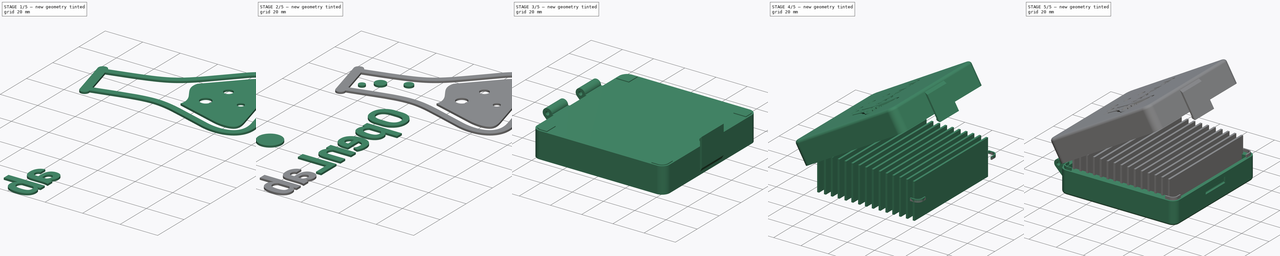
[diagram: build sequence overview — one tinted view per stage of 5, left to right]
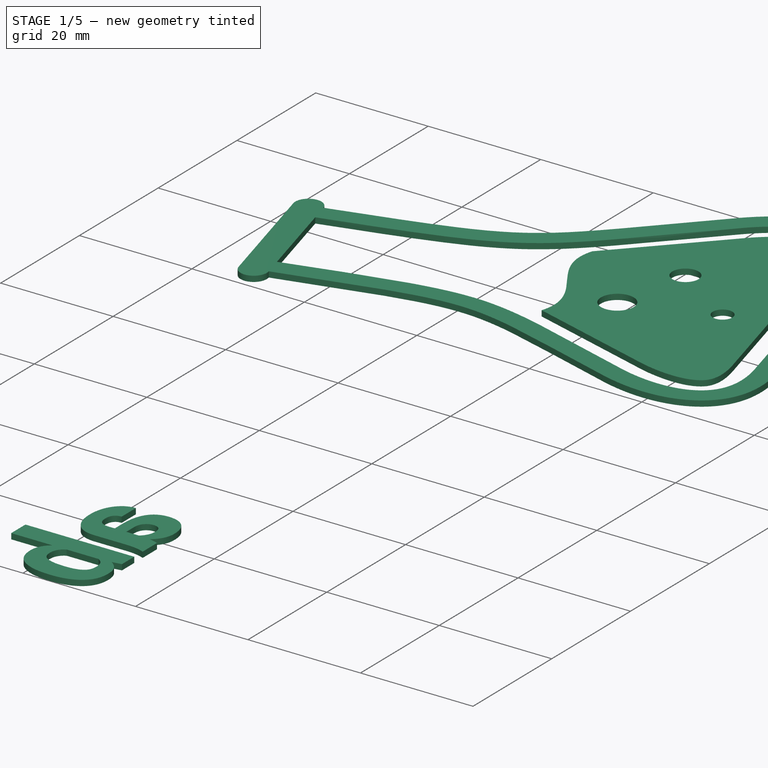
[diagram: stage 1 of 5 — iso view after this stage's code; geometry added in this stage tinted green]
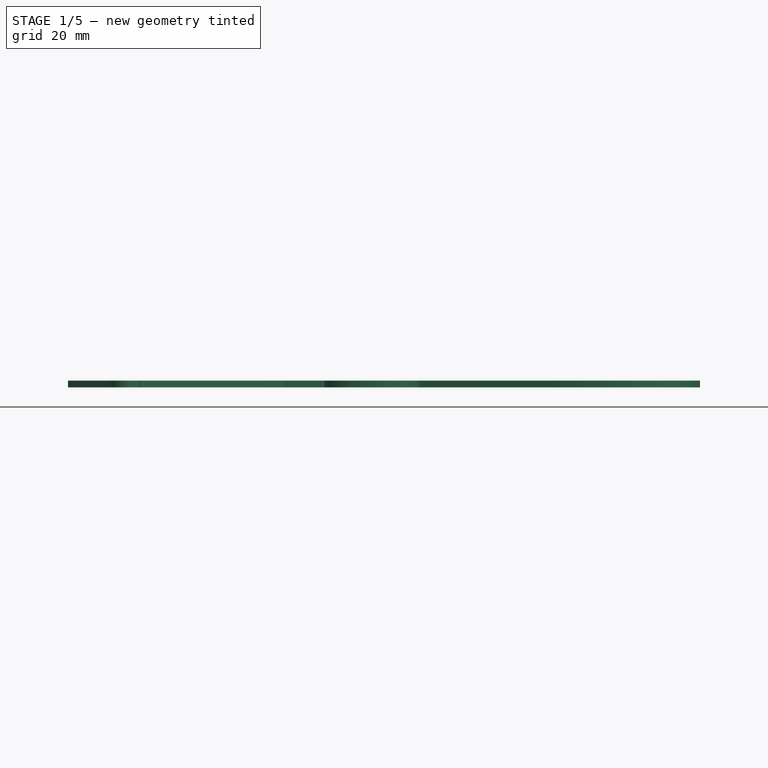
[diagram: stage 1 of 5 — front view after this stage's code; geometry added in this stage tinted green]
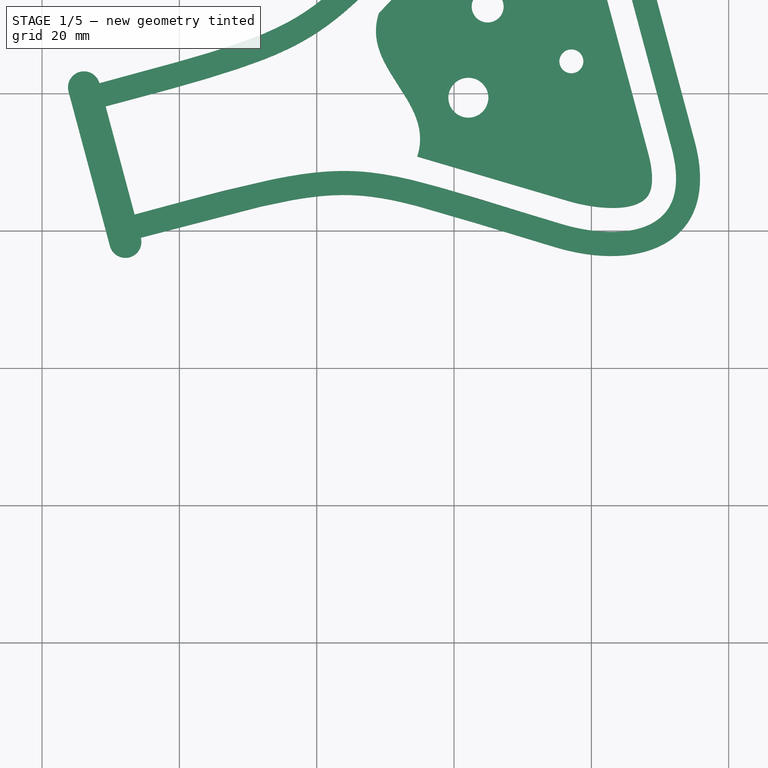
[diagram: stage 1 of 5 — top view after this stage's code; geometry added in this stage tinted green]
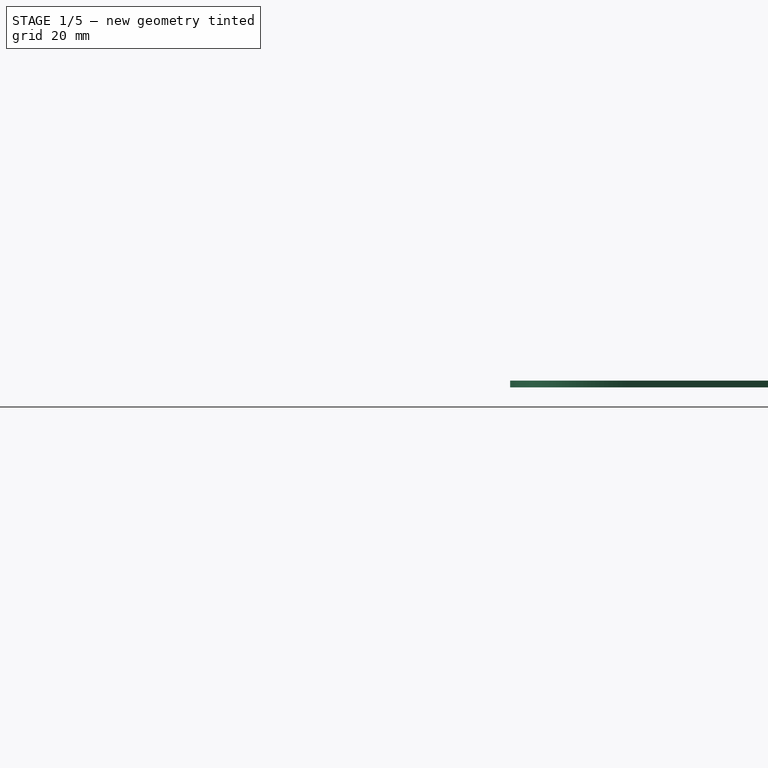
[diagram: stage 1 of 5 — right view after this stage's code; geometry added in this stage tinted green]
FCSTD DOCUMENT  (FreeCAD 0.16R6603 (Git))
Label: sample-carrier
License: All rights reserved
LicenseURL: http://en.wikipedia.org/wiki/All_rights_reserved
objects: Part::Feature×26, Part::Extrusion×26, Part::FeaturePython×14, Part::Cut×11, Part::MultiFuse×9, Sketcher::SketchObject×6, PartDesign::Pad×6, Part::Mirroring×4, Part::Box×3, App::DocumentObjectGroup×3, Spreadsheet::Sheet×1, Part::Thickness×1, Part::Fillet×1, Part::Compound×1
note: 114 computed .brp shape members not serialized (recipe doc carries the construction recipe); baked Part::Feature solids carry a one-line shape summary decoded from their .brp

FEATURE [Part::Extrusion] Extrude005
  Base = -> path4197
  Dir = (0,0,1)
  Solid = true
FEATURE [Part::Extrusion] Extrude006
  Base = -> path4197001
  Dir = (0,0,1)
  Solid = true
FEATURE [Part::Extrusion] Extrude007
  Base = -> path4197002
  Dir = (0,0,1)
  Solid = true
FEATURE [Part::Extrusion] Extrude008
  Base = -> path4197003
  Dir = (0,0,1)
  Solid = true
FEATURE [Part::Extrusion] Extrude011
  Base = -> path4211
  Dir = (0,0,1)
  Solid = true
FEATURE [Part::Extrusion] Extrude012
  Base = -> path4211001
  Dir = (0,0,1)
  Solid = true
FEATURE [Part::Extrusion] Extrude022
  Base = -> path3456
  Dir = (0,0,1)
  Solid = true
FEATURE [Part::Extrusion] Extrude023
  Base = -> path3456001
  Dir = (0,0,1)
  Solid = true
FEATURE [Part::Extrusion] Extrude024
  Base = -> path3458
  Dir = (0,0,1)
  Solid = true
FEATURE [Part::Extrusion] Extrude025
  Base = -> path3458001
  Dir = (0,0,1)
  Solid = true
FEATURE [Part::Cut] Cut006
  Base = -> Extrude022
  Placement = pos=(-65,87,0) rot=(0.707107,-0.707107,0;3.14159rad)
  Tool = -> Extrude023
FEATURE [Part::Cut] Cut007
  Base = -> Extrude024
  Placement = pos=(-65,87,0) rot=(0.707107,-0.707107,0;3.14159rad)
  Tool = -> Extrude025
FEATURE [Part::Cut] Cut008
  Base = -> Extrude011
  Placement = pos=(-65,87,0) rot=(0.707107,-0.707107,0;3.14159rad)
  Tool = -> Extrude012
FEATURE [Part::MultiFuse] Fusion008
  Shapes = -> [Extrude005,Extrude006,Extrude007]
FEATURE [Part::Cut] Cut009
  Base = -> Extrude008
  Placement = pos=(-65,87,0) rot=(0.707107,-0.707107,0;3.14159rad)
  Tool = -> Fusion008
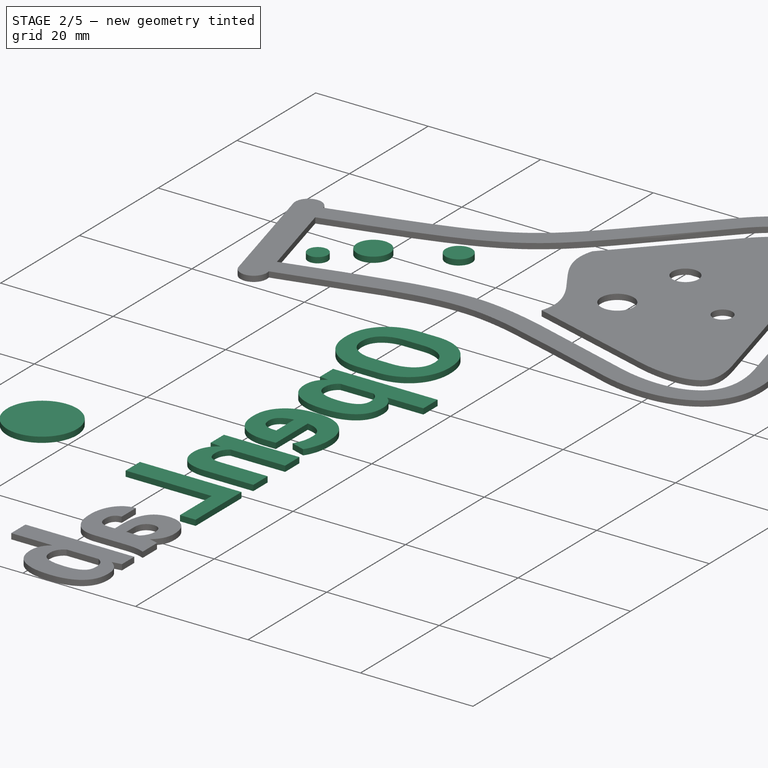
[diagram: stage 2 of 5 — iso view after this stage's code; geometry added in this stage tinted green]
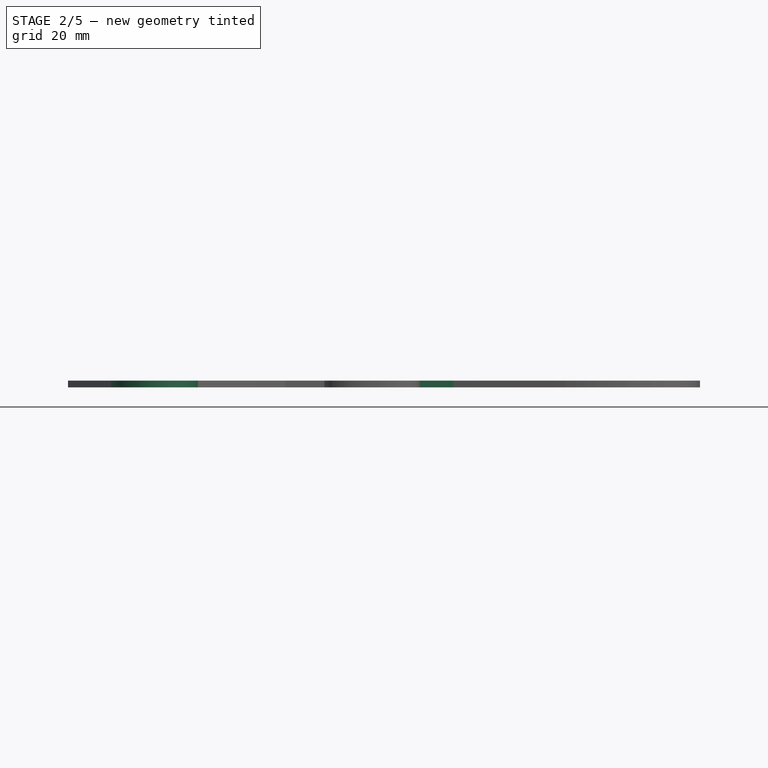
[diagram: stage 2 of 5 — front view after this stage's code; geometry added in this stage tinted green]
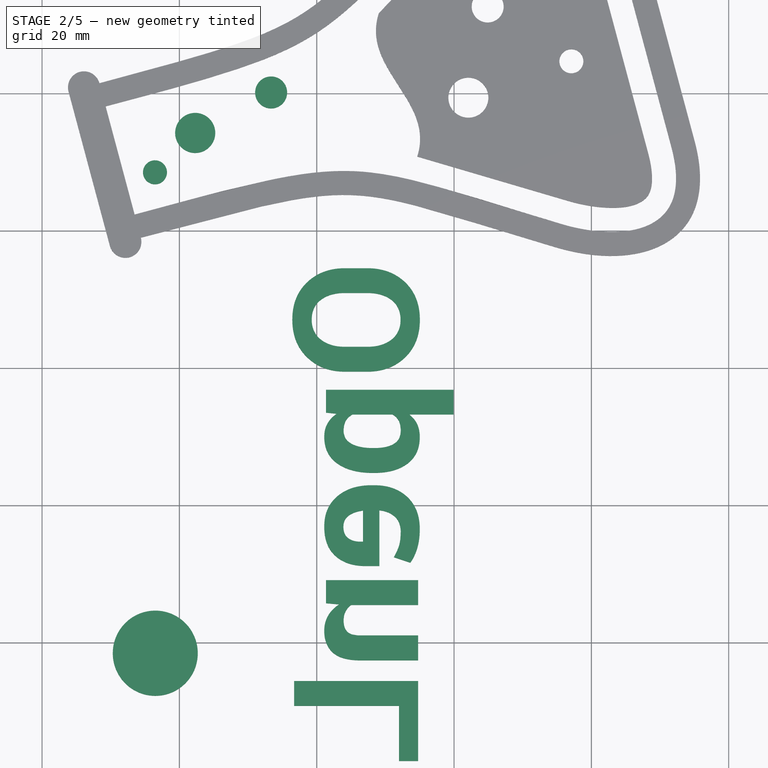
[diagram: stage 2 of 5 — top view after this stage's code; geometry added in this stage tinted green]
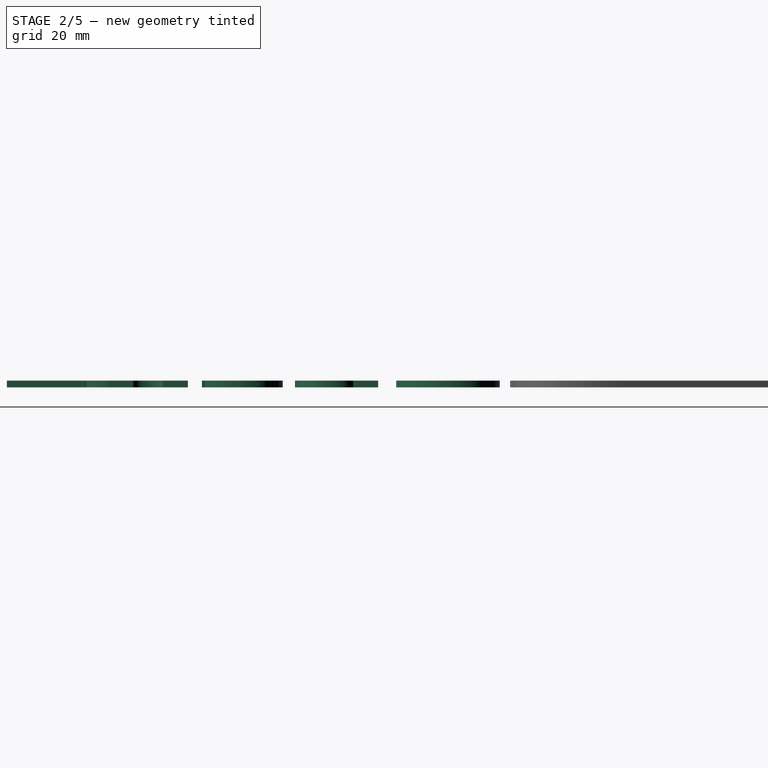
[diagram: stage 2 of 5 — right view after this stage's code; geometry added in this stage tinted green]
FEATURE [Part::Extrusion] Extrude004
  Base = -> path4172
  Dir = (0,0,1)
  Placement = pos=(-65,87,0) rot=(0.707107,-0.707107,0;3.14159rad)
  Solid = true
FEATURE [Part::Extrusion] Extrude009
  Base = -> circle4203
  Dir = (0,0,1)
  Placement = pos=(-65,87,0) rot=(0.707107,-0.707107,0;3.14159rad)
  Solid = true
FEATURE [Part::Extrusion] Extrude010
  Base = -> circle4209
  Dir = (0,0,1)
  Placement = pos=(-65,87,0) rot=(0.707107,-0.707107,0;3.14159rad)
  Solid = true
FEATURE [Part::Extrusion] Extrude013
  Base = -> circle4203_5
  Dir = (0,0,1)
  Placement = pos=(-65,87,0) rot=(0.707107,-0.707107,0;3.14159rad)
  Solid = true
FEATURE [Part::Extrusion] Extrude014
  Base = -> path3446
  Dir = (0,0,1)
  Solid = true
FEATURE [Part::Extrusion] Extrude015
  Base = -> path3446001
  Dir = (0,0,1)
  Solid = true
FEATURE [Part::Extrusion] Extrude016
  Base = -> path3448
  Dir = (0,0,1)
  Solid = true
FEATURE [Part::Extrusion] Extrude017
  Base = -> path3448001
  Dir = (0,0,1)
  Solid = true
FEATURE [Part::Extrusion] Extrude018
  Base = -> path3450
  Dir = (0,0,1)
  Solid = true
FEATURE [Part::Extrusion] Extrude019
  Base = -> path3450001
  Dir = (0,0,1)
  Solid = true
FEATURE [Part::Extrusion] Extrude020
  Base = -> path3452
  Dir = (0,0,1)
  Placement = pos=(-65,87,0) rot=(0.707107,-0.707107,0;3.14159rad)
  Solid = true
FEATURE [Part::Extrusion] Extrude021
  Base = -> path3454
  Dir = (0,0,1)
  Placement = pos=(-65,87,0) rot=(0.707107,-0.707107,0;3.14159rad)
  Solid = true
FEATURE [Part::Cut] Cut003
  Base = -> Extrude014
  Placement = pos=(-65,87,0) rot=(0.707107,-0.707107,0;3.14159rad)
  Tool = -> Extrude015
FEATURE [Part::Cut] Cut004
  Base = -> Extrude016
  Placement = pos=(-65,87,0) rot=(0.707107,-0.707107,0;3.14159rad)
  Tool = -> Extrude017
FEATURE [Part::Cut] Cut005
  Base = -> Extrude018
  Placement = pos=(-65,87,0) rot=(0.707107,-0.707107,0;3.14159rad)
  Tool = -> Extrude019
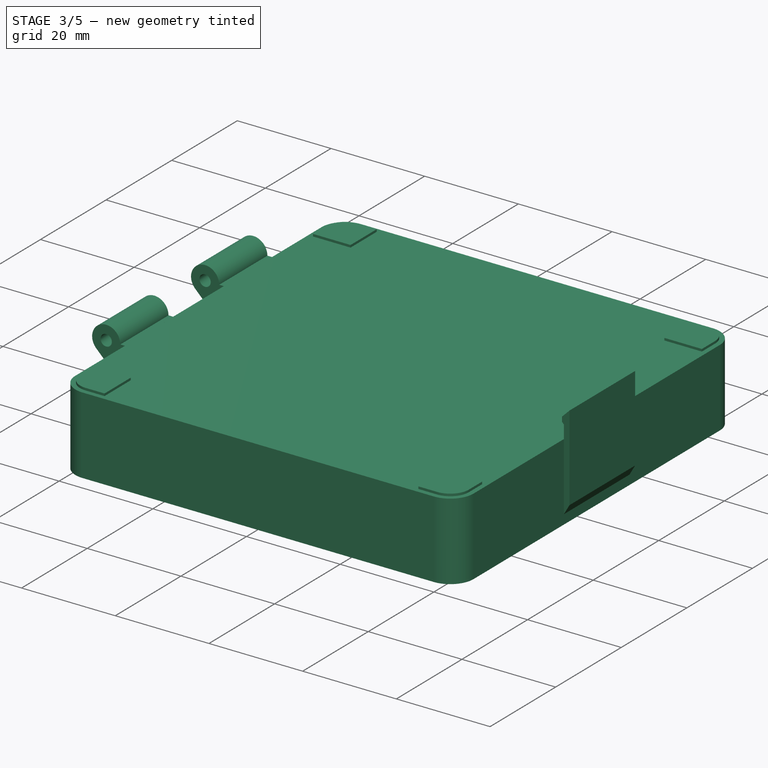
[diagram: stage 3 of 5 — iso view after this stage's code; geometry added in this stage tinted green]
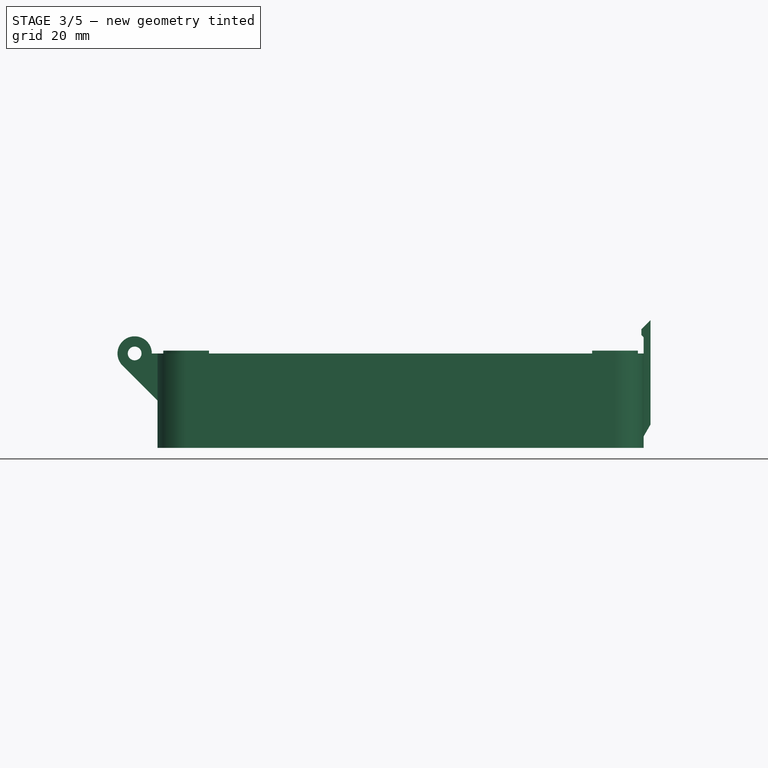
[diagram: stage 3 of 5 — front view after this stage's code; geometry added in this stage tinted green]
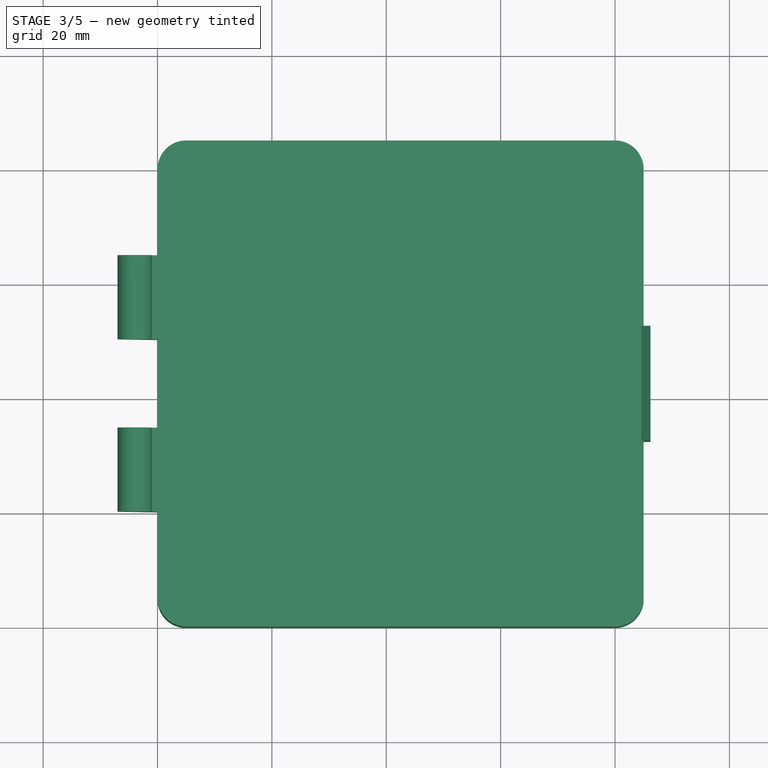
[diagram: stage 3 of 5 — top view after this stage's code; geometry added in this stage tinted green]
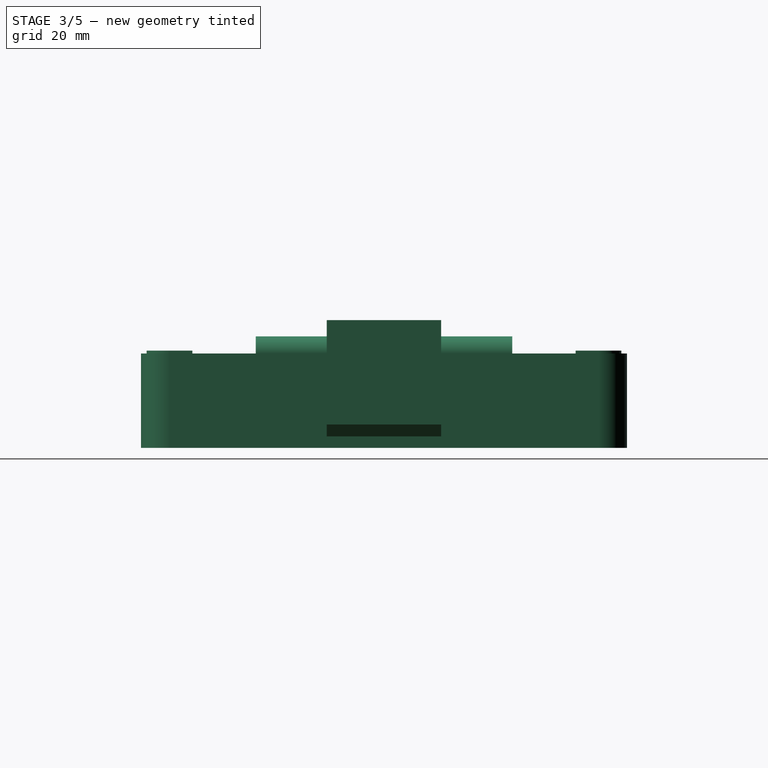
[diagram: stage 3 of 5 — right view after this stage's code; geometry added in this stage tinted green]
FEATURE [Spreadsheet::Sheet] Spreadsheet
  cells = B2=Number of samples; C2(samples)=15
FEATURE [Sketcher::SketchObject] Sketch  label="BodySketch"
  expr: Constraints[12] = Spreadsheet.samples * 5
  sketch-geometry (8):
    g0: LineSegment StartX=5 StartY=85 StartZ=0 EndX=80 EndY=85 EndZ=0
    g1: LineSegment StartX=85 StartY=5 StartZ=0 EndX=85 EndY=80 EndZ=0
    g2: LineSegment StartX=4.99999 StartY=0 StartZ=0 EndX=80 EndY=0 EndZ=0
    g3: LineSegment StartX=0 StartY=5 StartZ=0 EndX=0 EndY=80 EndZ=0
    g4: ArcOfCircle CenterX=5 CenterY=80 CenterZ=0 NormalX=0 NormalY=0 NormalZ=1 Radius=5 StartAngle=1.5708 EndAngle=3.14159
    g5: ArcOfCircle CenterX=4.99997 CenterY=4.99997 CenterZ=0 NormalX=0 NormalY=0 NormalZ=1 Radius=4.99997 StartAngle=3.14159 EndAngle=4.71239
    g6: ArcOfCircle CenterX=80 CenterY=5 CenterZ=0 NormalX=0 NormalY=0 NormalZ=1 Radius=5 StartAngle=4.71239 EndAngle=6.28319
    g7: ArcOfCircle CenterX=80 CenterY=80 CenterZ=0 NormalX=0 NormalY=0 NormalZ=1 Radius=5 StartAngle=3.24556e-07 EndAngle=1.5708
  constraints (28):
    c: Horizontal(g0)
    c: Horizontal(g2)
    c: Vertical(g1)
    c: Vertical(g3)
    c: Coincident(g4,g0)
    c: Coincident(g4,g3)
    c: Tangent(g0,g4)
    c: Tangent(g4,g3)
    c: Equal(g0,g2)
    c: Equal(g1,g3)
    c: PointOnObject(g3,g-2)
    c: PointOnObject(g2,g-1)
    c: DistanceX(g2) = 75
    c: DistanceY(g1) = 75
    c: Coincident(g5,g3)
    c: Coincident(g5,g2)
    c: Coincident(g6,g1)
    c: Coincident(g6,g2)
    c: Coincident(g7,g0)
    c: Coincident(g7,g1)
    c: Tangent(g1,g7)
    c: Tangent(g0,g7)
    c: Tangent(g5,g2)
    c: Tangent(g6,g2)
    c: Tangent(g1,g6)
    c: Equal(g6,g7)
    c: Equal(g7,g4)
    c: Radius(g4) = 5
FEATURE [PartDesign::Pad] Pad  label="BodyPad"
  Length = 16.5
  Length2 = 100
  Sketch = -> Sketch
  Type = 0
FEATURE [Sketcher::SketchObject] Sketch002  label="hingeSketch"
  Placement = pos=(0,0,0) rot=(1,0,0;1.5708rad)
  sketch-geometry (5):
    g0: LineSegment StartX=0 StartY=0 StartZ=0 EndX=-6.12131 EndY=6.12131 EndZ=0
    g1: LineSegment StartX=0 StartY=0 StartZ=0 EndX=0 EndY=8.24264 EndZ=0
    g2: Circle CenterX=-4 CenterY=8.24264 CenterZ=0 NormalX=0 NormalY=0 NormalZ=1 Radius=1.2
    g3: ArcOfCircle CenterX=-4 CenterY=8.24264 CenterZ=0 NormalX=0 NormalY=0 NormalZ=1 Radius=3 StartAngle=0 EndAngle=3.927
    g4: LineSegment StartX=-1 StartY=8.24264 StartZ=0 EndX=0 EndY=8.24264 EndZ=0
  constraints (14):
    c: Coincident(g0,g-1)
    c: Angle(g-1,g0) = 2.35619
    c: Coincident(g1,g-1)
    c: Vertical(g1)
    c: Radius(g2) = 1.2
    c: Coincident(g3,g2)
    c: Coincident(g3,g0)
    c: Coincident(g4,g3)
    c: Coincident(g4,g1)
    c: Horizontal(g4)
    c: DistanceX(g4) = 1
    c: Radius(g3) = 3
    c: DistanceY(g2,g3) = 0
    c: Tangent(g0,g3)
FEATURE [PartDesign::Pad] Pad001  label="HingeMaster"
  Length = 14.7
  Length2 = 100
  Midplane = true
  Placement = pos=(0,0,0) rot=(1,0,0;1.5708rad)
  Sketch = -> Sketch002
  Type = 0
FEATURE [Sketcher::SketchObject] Sketch004  label="TopCornerSketch"
  Placement = pos=(5,5,17) rot=(0,0,1;3.14159rad)
  sketch-geometry (5):
    g0: ArcOfCircle CenterX=0 CenterY=0 CenterZ=0 NormalX=0 NormalY=0 NormalZ=1 Radius=4 StartAngle=0 EndAngle=1.5708
    g1: LineSegment StartX=4 StartY=-4 StartZ=0 EndX=4 EndY=0 EndZ=0
    g2: LineSegment StartX=0 StartY=4 StartZ=0 EndX=-4 EndY=4 EndZ=0
    g3: LineSegment StartX=-4 StartY=4 StartZ=0 EndX=-4 EndY=-4 EndZ=0
    g4: LineSegment StartX=4 StartY=-4 StartZ=0 EndX=-4 EndY=-4 EndZ=0
  constraints (14):
    c: Radius(g0) = 4
    c: Coincident(g0,g-1)
    c: Vertical(g1)
    c: Coincident(g1,g0)
    c: PointOnObject(g0,g-1)
    c: Tangent(g0,g2) = -1.5708
    c: Coincident(g2,g3)
    c: Vertical(g3)
    c: Horizontal(g2)
    c: DistanceX(g2) = -4
    c: Coincident(g4,g1)
    c: Horizontal(g4)
    c: Coincident(g3,g4)
    c: DistanceY(g1) = 4
FEATURE [PartDesign::Pad] Pad003  label="TopCornerPad"
  Length = 3
  Length2 = 100
  Placement = pos=(5,5,17) rot=(0,0,1;3.14159rad)
  Reversed = true
  Sketch = -> Sketch004
  Type = 0
FEATURE [Part::Mirroring] Part__Mirroring002  label="TopCornerPad (Mirror #3)"
  Base = (0,42.5,0)
  Normal = (0,1,0)
  Source = -> Pad003
FEATURE [Part::MultiFuse] Fusion004  label="TopCornersA"
  Shapes = -> [Pad003,Part__Mirroring002]
FEATURE [Part::Mirroring] Part__Mirroring003  label="TopCornersB"
  Base = (42.5,0,0)
  Normal = (1,0,0)
  Source = -> Fusion004
  expr: Base.x = (Spreadsheet.samples * 5 + 10) / 2
FEATURE [Part::MultiFuse] Fusion005  label="TopCorners"
  Shapes = -> [Fusion004,Part__Mirroring003]
FEATURE [Sketcher::SketchObject] Sketch005  label="FixSketch"
  Placement = pos=(86.2,42.5,0) rot=(1,0,0;1.5708rad)
  expr: Placement.Base.x = Spreadsheet.samples * 5 + 10 + 1.2
  sketch-geometry (6):
    g0: LineSegment StartX=0 StartY=4.07846 StartZ=0 EndX=0 EndY=22.3229 EndZ=0
    g1: LineSegment StartX=0 StartY=4.07846 StartZ=0 EndX=-1.2 EndY=2 EndZ=0
    g2: LineSegment StartX=-1.2 StartY=2 StartZ=0 EndX=-1.2 EndY=19.3229 EndZ=0
    g3: LineSegment StartX=-1.6 StartY=19.7229 StartZ=0 EndX=-1.6 EndY=20.7229 EndZ=0
    g4: LineSegment StartX=-1.6 StartY=20.7229 StartZ=0 EndX=0 EndY=22.3229 EndZ=0
    g5: LineSegment StartX=-1.2 StartY=19.3229 StartZ=0 EndX=-1.6 EndY=19.7229 EndZ=0
  constraints (18):
    c: Vertical(g0)
    c: Coincident(g1,g2)
    c: Vertical(g2)
    c: DistanceX(g1) = -1.2
    c: DistanceY(g2,g0) = 3
    c: Coincident(g4,g3)
    c: Coincident(g4,g0)
    c: Vertical(g3)
    c: Angle(g3,g4) = 2.35619
    c: Coincident(g5,g2)
    c: Coincident(g5,g3)
    c: Angle(g5,g2) = 2.35619
    c: DistanceY(g2,g3) = 0.4
    c: PointOnObject(g0,g-2)
    c: Coincident(g1,g0)
    c: DistanceY(g-1,g1) = 2
    c: Angle(g1,g2) = 0.523599
    c: DistanceY(g2) = 17.3229
FEATURE [PartDesign::Pad] Pad004  label="FixPad"
  Length = 20
  Length2 = 100
  Midplane = true
  Placement = pos=(86.2,42.5,0) rot=(1,0,0;1.5708rad)
  Sketch = -> Sketch005
  Type = 0
FEATURE [Part::FeaturePython] Clone006  label="Clone of HingeMaster003"  # Draft clone (typed FeaturePython)
  Objects = -> [Pad001]
  Placement = pos=(5e-12,57.575,8.25736) rot=(1,0,0;1.5708rad)
  Scale = (1,1,1)
FEATURE [Part::FeaturePython] Clone007  label="Clone of HingeMaster004"  # Draft clone (typed FeaturePython)
  Objects = -> [Pad001]
  Placement = pos=(1.4e-11,27.425,8.25736) rot=(1,0,0;1.5708rad)
  Scale = (1,1,1)
FEATURE [Part::Feature] path4156
  shape: bbox 8.708 x 8.684 x 2e-07 mm, 0 faces, 0 solids (baked)
FEATURE [Part::Feature] path4160
  shape: bbox 12.41 x 12.38 x 2e-07 mm, 0 faces, 0 solids (baked)
FEATURE [Part::Feature] path4164
  shape: bbox 12.41 x 12.38 x 2e-07 mm, 0 faces, 0 solids (baked)
FEATURE [Part::Feature] path4168
  shape: bbox 12.41 x 12.38 x 2e-07 mm, 0 faces, 0 solids (baked)
FEATURE [Part::Feature] path4172
  shape: bbox 12.41 x 12.38 x 2e-07 mm, 0 faces, 0 solids (baked)
FEATURE [Part::Feature] path4197
  shape: bbox 6.135 x 6.135 x 2e-07 mm, 0 faces, 0 solids (baked)
FEATURE [Part::Feature] path4197001
  shape: bbox 3.68 x 3.68 x 2e-07 mm, 0 faces, 0 solids (baked)
FEATURE [Part::Feature] path4197002
  shape: bbox 4.906 x 4.908 x 2e-07 mm, 0 faces, 0 solids (baked)
FEATURE [Part::Feature] path4197003
  shape: bbox 50.87 x 41.54 x 2e-07 mm, 0 faces, 0 solids (baked)
FEATURE [Part::Feature] circle4203
  Placement = pos=(351.916,-321.104,0) rot=(0,0,1;0rad)
  shape: bbox 4.12 x 4.12 x 2e-07 mm, 0 faces, 0 solids (baked)
FEATURE [Part::Feature] circle4209
  Placement = pos=(323.883,-400.239,0) rot=(0,0,1;0rad)
  shape: bbox 5.493 x 5.493 x 2e-07 mm, 0 faces, 0 solids (baked)
FEATURE [Part::Feature] path4211
  shape: bbox 68 x 94.14 x 2e-07 mm, 0 faces, 0 solids (baked)
FEATURE [Part::Feature] path4211001
  shape: bbox 58.05 x 83.4 x 2e-07 mm, 0 faces, 0 solids (baked)
FEATURE [Part::Feature] circle4203_5
  Placement = pos=(335.456,-350.315,0) rot=(0,0,1;0rad)
  shape: bbox 6.885 x 6.885 x 2e-07 mm, 0 faces, 0 solids (baked)
FEATURE [Part::Feature] path3446
  shape: bbox 15.07 x 18.58 x 2e-07 mm, 0 faces, 0 solids (baked)
FEATURE [Part::Feature] path3446001
  shape: bbox 7.838 x 12.94 x 2e-07 mm, 0 faces, 0 solids (baked)
FEATURE [Part::Feature] path3448
  shape: bbox 12.1 x 18.83 x 2e-07 mm, 0 faces, 0 solids (baked)
FEATURE [Part::Feature] path3448001
  shape: bbox 4.874 x 8.322 x 2e-07 mm, 0 faces, 0 solids (baked)
FEATURE [Part::Feature] path3450
  shape: bbox 11.77 x 13.93 x 2e-07 mm, 0 faces, 0 solids (baked)
FEATURE [Part::Feature] path3450001
  shape: bbox 4.527 x 2.853 x 2e-07 mm, 0 faces, 0 solids (baked)
FEATURE [Part::Feature] path3452
  shape: bbox 11.7 x 13.67 x 2e-07 mm, 0 faces, 0 solids (baked)
FEATURE [Part::Feature] path3454
  shape: bbox 11.66 x 18.06 x 2e-07 mm, 0 faces, 0 solids (baked)
FEATURE [Part::Feature] path3456
  shape: bbox 12.03 x 13.92 x 2e-07 mm, 0 faces, 0 solids (baked)
FEATURE [Part::Feature] path3456001
  shape: bbox 4.192 x 3.46 x 2e-07 mm, 0 faces, 0 solids (baked)
FEATURE [Part::Feature] path3458
  shape: bbox 12.1 x 19.6 x 2e-07 mm, 0 faces, 0 solids (baked)
FEATURE [Part::Feature] path3458001
  shape: bbox 4.887 x 8.297 x 2e-07 mm, 0 faces, 0 solids (baked)
FEATURE [Part::Extrusion] Extrude
  Base = -> path4156
  Dir = (0,0,1)
  Placement = pos=(-65,87,0) rot=(0.707107,-0.707107,0;3.14159rad)
  Solid = true
FEATURE [Part::Extrusion] Extrude001
  Base = -> path4160
  Dir = (0,0,1)
  Placement = pos=(-65,87,0) rot=(0.707107,-0.707107,0;3.14159rad)
  Solid = true
FEATURE [Part::Extrusion] Extrude002
  Base = -> path4164
  Dir = (0,0,1)
  Placement = pos=(-65,87,0) rot=(0.707107,-0.707107,0;3.14159rad)
  Solid = true
FEATURE [Part::Extrusion] Extrude003
  Base = -> path4168
  Dir = (0,0,1)
  Placement = pos=(-65,87,0) rot=(0.707107,-0.707107,0;3.14159rad)
  Solid = true
FEATURE [Part::Compound] Compound  label="Logo"
  Links = -> [Cut003,Extrude,Extrude020,Extrude001,Extrude003,Extrude004,Extrude002,Extrude010,Cut004,Extrude009,Cut005,Extrude013,Cut008,Extrude021,Cut006,Cut007,Cut009]
FEATURE [Part::FeaturePython] Clone008  label="Clone of Logo"  # Draft clone (typed FeaturePython)
  Objects = -> [Compound]
  Placement = pos=(42.5,43.5,1) rot=(0,0,1;0rad)
  Scale = (0.4,0.4,1)
  expr: Scale.y = Spreadsheet.samples > 7 ? 0.4 : 0.2
  expr: Scale.x = Spreadsheet.samples > 7 ? 0.4 : 0.2
  expr: Placement.Base.x = (Spreadsheet.samples * 5 + 10) / 2
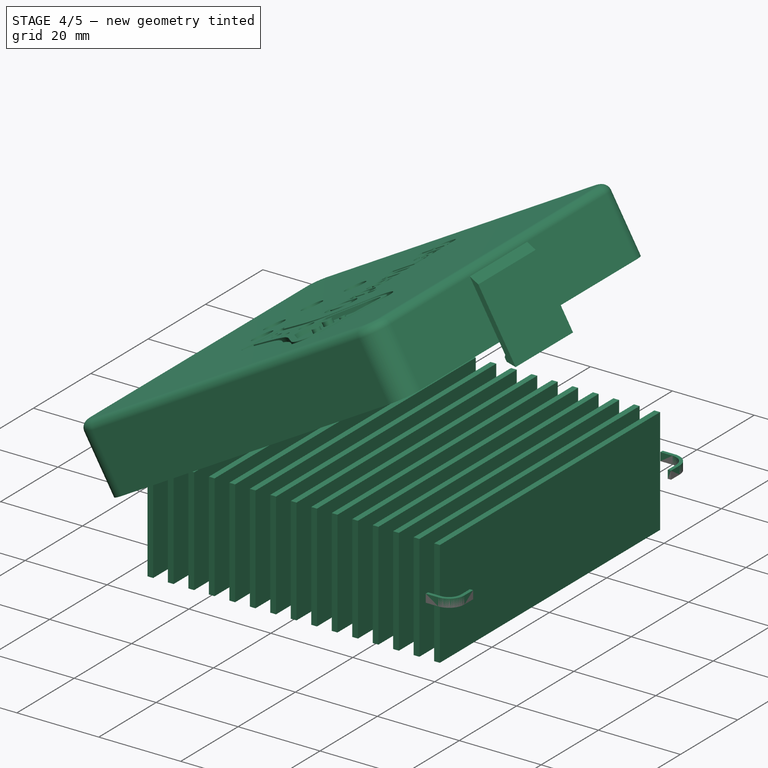
[diagram: stage 4 of 5 — iso view after this stage's code; geometry added in this stage tinted green]
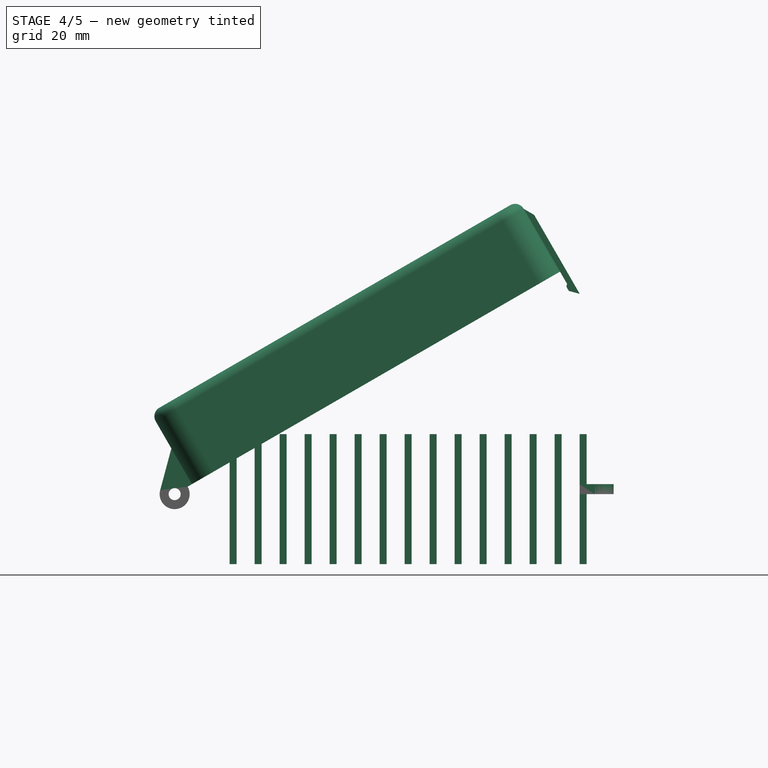
[diagram: stage 4 of 5 — front view after this stage's code; geometry added in this stage tinted green]
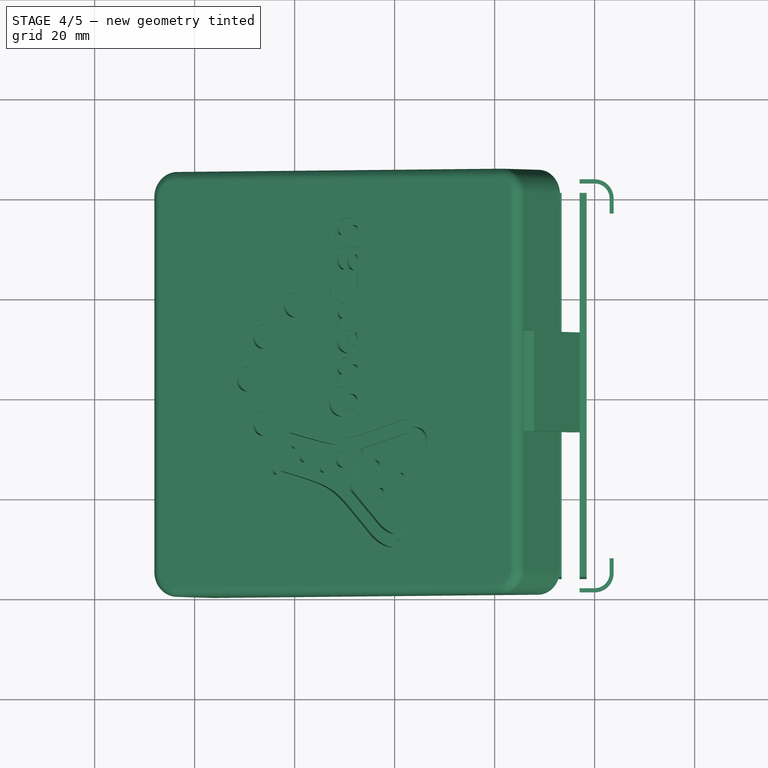
[diagram: stage 4 of 5 — top view after this stage's code; geometry added in this stage tinted green]
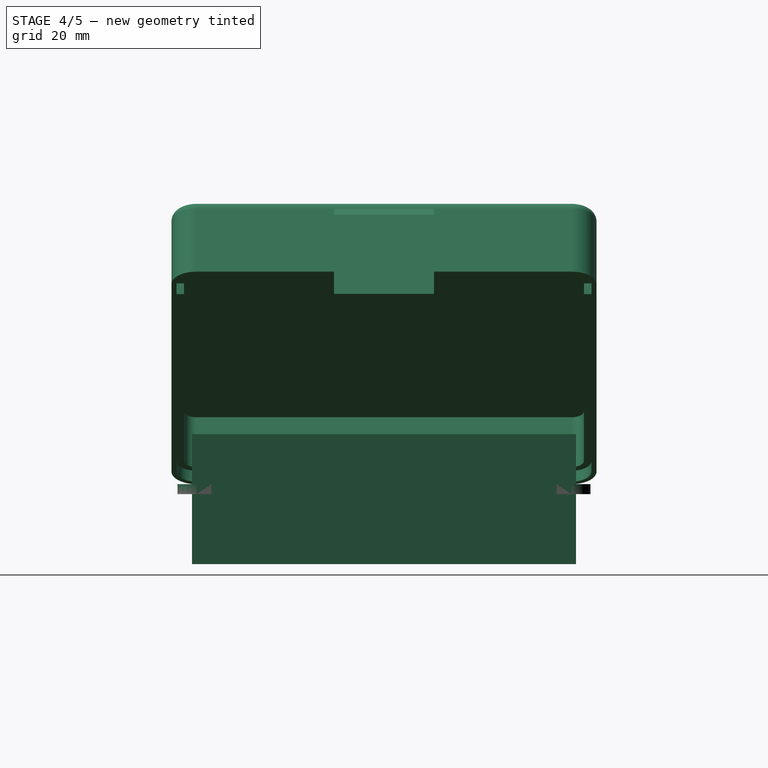
[diagram: stage 4 of 5 — right view after this stage's code; geometry added in this stage tinted green]
FEATURE [Part::Box] Box  label="SampleMaster"
  Height = 26
  Length = 1.4
  Width = 76.8
FEATURE [Part::Thickness] Thickness  label="BodyThickness"
  Faces = -> Pad [Face10]
  Intersection = false
  Join = 0
  Mode = 0
  SelfIntersection = false
  Value = -2.5
FEATURE [Part::Fillet] Fillet  label="BodyMaster"
  Base = -> Thickness
  Edges = 8 edges r=2: [Edge3,Edge6,Edge9,Edge12,Edge15,Edge18,Edge21,Edge23]
FEATURE [Sketcher::SketchObject] Sketch003  label="BotCornerSketch"
  Placement = pos=(5,5,16.5) rot=(0,0,1;3.14159rad)
  sketch-geometry (8):
    g0: ArcOfCircle CenterX=0 CenterY=0 CenterZ=0 NormalX=0 NormalY=0 NormalZ=1 Radius=3.8 StartAngle=0 EndAngle=1.5708
    g1: ArcOfCircle CenterX=0 CenterY=0 CenterZ=0 NormalX=0 NormalY=0 NormalZ=1 Radius=3 StartAngle=0 EndAngle=1.5708
    g2: LineSegment StartX=3 StartY=0 StartZ=0 EndX=3 EndY=-3 EndZ=0
    g3: LineSegment StartX=3 StartY=-3 StartZ=0 EndX=3.8 EndY=-3 EndZ=0
    g4: LineSegment StartX=3.8 StartY=-3 StartZ=0 EndX=3.8 EndY=0 EndZ=0
    g5: LineSegment StartX=0 StartY=3.8 StartZ=0 EndX=-3 EndY=3.8 EndZ=0
    g6: LineSegment StartX=-3 StartY=3.8 StartZ=0 EndX=-3 EndY=3 EndZ=0
    g7: LineSegment StartX=-3 StartY=3 StartZ=0 EndX=0 EndY=3 EndZ=0
  constraints (23):
    c: Coincident(g1,g-1)
    c: Radius(g1) = 3
    c: Radius(g0) = 3.8
    c: Coincident(g0,g-1)
    c: PointOnObject(g1,g-1)
    c: PointOnObject(g1,g-2)
    c: Vertical(g2)
    c: Coincident(g2,g3)
    c: Horizontal(g3)
    c: Coincident(g3,g4)
    c: Vertical(g4)
    c: Coincident(g4,g0)
    c: Coincident(g2,g1)
    c: DistanceY(g2) = -3
    c: PointOnObject(g0,g-1)
    c: Tangent(g0,g5) = -1.5708
    c: Coincident(g5,g6)
    c: Vertical(g6)
    c: Coincident(g6,g7)
    c: Horizontal(g7)
    c: Horizontal(g5)
    c: DistanceX(g5) = -3
    c: Coincident(g7,g1)
FEATURE [PartDesign::Pad] Pad002  label="BotCornerPad"
  Length = 2
  Length2 = 100
  Placement = pos=(5,5,16.5) rot=(0,0,1;3.14159rad)
  Sketch = -> Sketch003
  Type = 0
FEATURE [Part::Mirroring] Part__Mirroring  label="BotCornerPad (Mirror #1)"
  Base = (0,42.5,0)
  Normal = (0,1,0)
  Source = -> Pad002
FEATURE [Part::MultiFuse] Fusion002  label="BotCornersA"
  Shapes = -> [Pad002,Part__Mirroring]
FEATURE [Part::Mirroring] Part__Mirroring001  label="BotCornersB"
  Base = (42.5,0,0)
  Normal = (1,0,0)
  Source = -> Fusion002
  expr: Base.x = (Spreadsheet.samples * 5 + 10) / 2
FEATURE [Part::FeaturePython] Clone005  label="Clone of BodyMaster001"  # Draft clone (typed FeaturePython)
  Objects = -> [Fillet]
  Scale = (1,1,1)
FEATURE [Part::Cut] Cut002  label="BodyTopCorners"
  Base = -> Clone005
  Tool = -> Fusion005
FEATURE [Part::MultiFuse] Fusion006  label="BodyTopFix"
  Shapes = -> [Cut002,Pad004]
FEATURE [Part::MultiFuse] Fusion007  label="BodyTopHinges"
  Shapes = -> [Fusion006,Clone006,Clone007]
FEATURE [Part::FeaturePython] Clone011  label="Clone of SampleMaster001"  # Draft clone (typed FeaturePython)
  Objects = -> [Box]
  Placement = pos=(7,4.1,2.5) rot=(0,0,1;0rad)
  Scale = (1,1,1)
FEATURE [Part::FeaturePython] Array001  # Draft array (typed FeaturePython)
  Angle = 360
  ArrayType = 0
  Axis = (0,0,1)
  Base = -> Clone011
  Center = (0,0,0)
  Fuse = false
  IntervalAxis = (0,0,0)
  IntervalX = (5,0,0)
  IntervalY = (0,0,0)
  IntervalZ = (0,0,0)
  NumberPolar = 1
  NumberX = 15
  NumberY = 1
  NumberZ = 1
  expr: NumberX = Spreadsheet.samples
FEATURE [Part::Cut] Cut010  label="BodyTopMaster"
  Base = -> Fusion007
  Tool = -> Clone008
FEATURE [App::DocumentObjectGroup] Group  label="Master"
  Group = -> [Box,Group001,Cut001,Cut010]
FEATURE [Part::FeaturePython] Clone010  label="Clone of BodyTopMaster"  # Draft clone (typed FeaturePython)
  Objects = -> [Cut010]
  Placement = pos=(-8.78588,85,32.7894) rot=(0.965926,0,0.258819;3.14159rad)
  Scale = (1,1,1)
FEATURE [App::DocumentObjectGroup] Group002  label="Assembly"
  Group = -> [Clone009,Clone010,Array001]
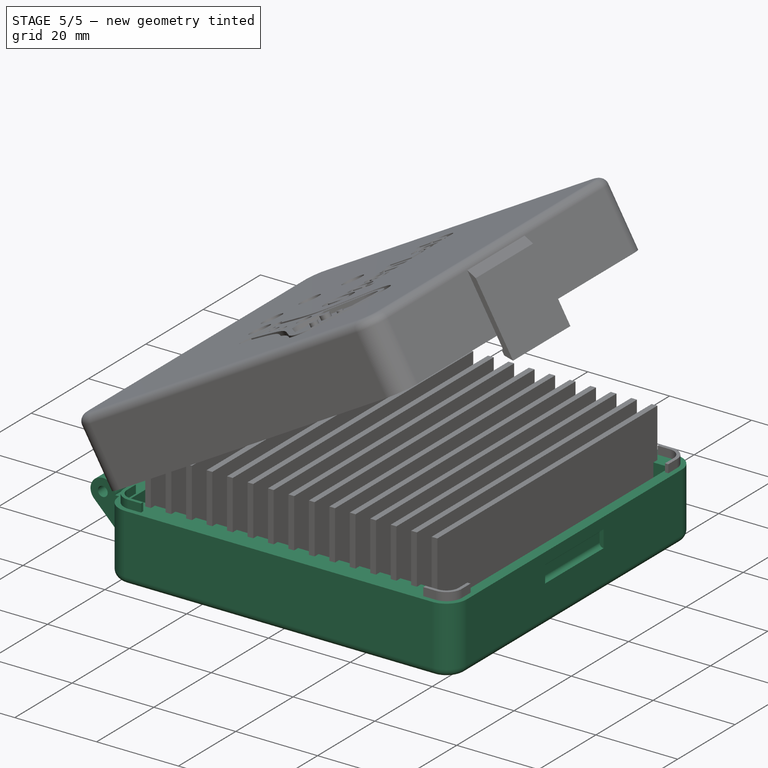
[diagram: stage 5 of 5 — iso view after this stage's code; geometry added in this stage tinted green]
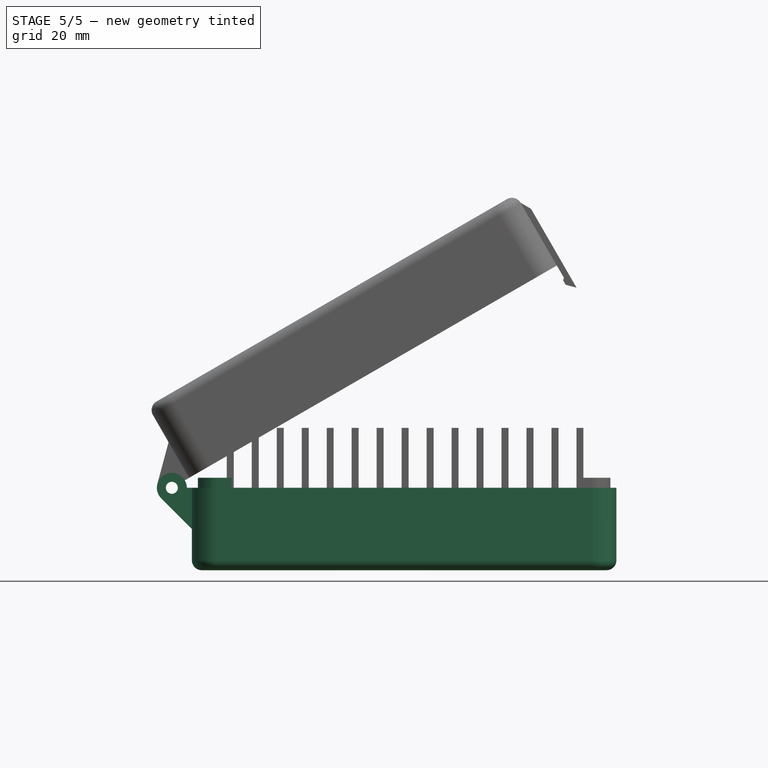
[diagram: stage 5 of 5 — front view after this stage's code; geometry added in this stage tinted green]
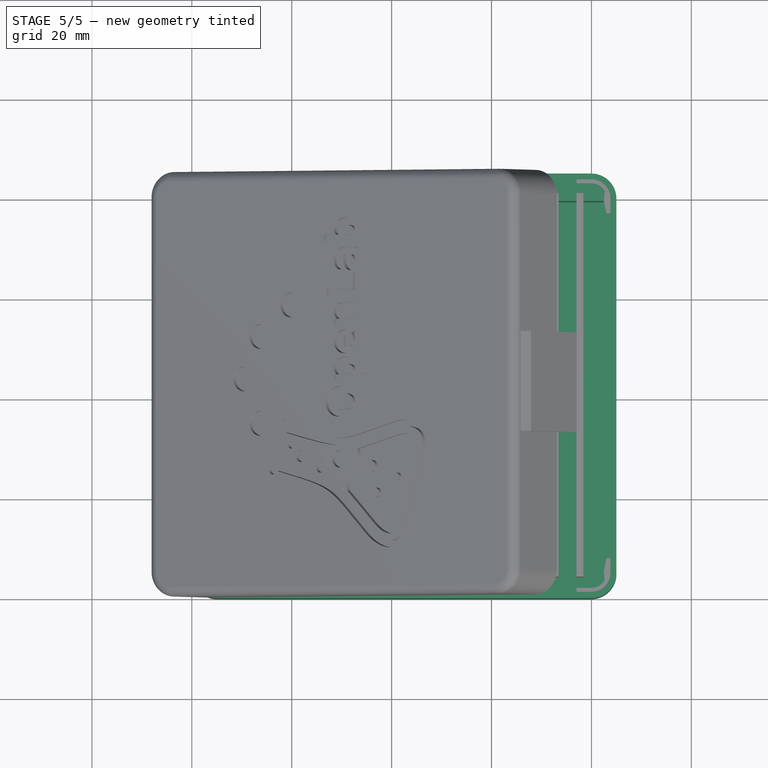
[diagram: stage 5 of 5 — top view after this stage's code; geometry added in this stage tinted green]
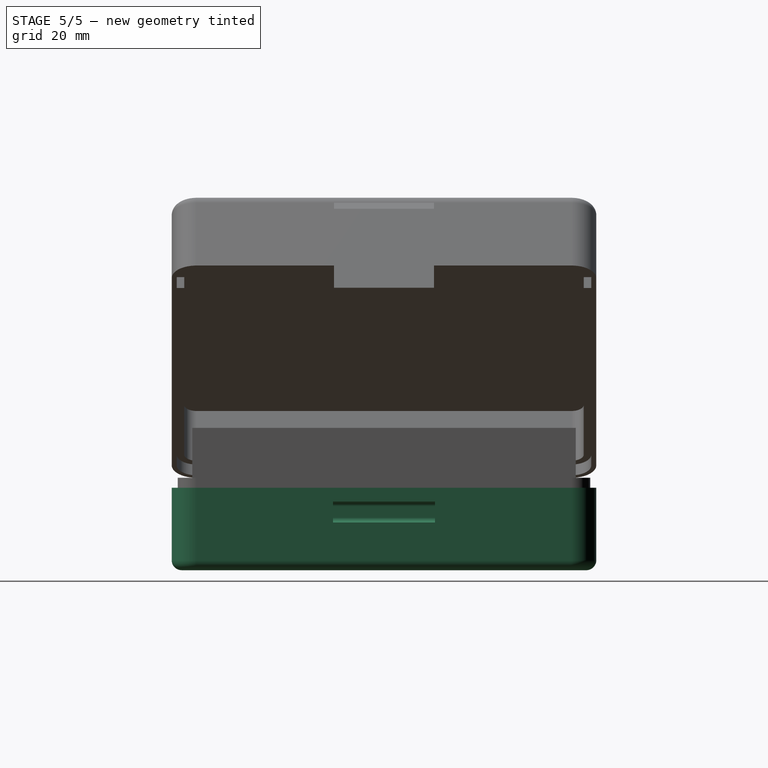
[diagram: stage 5 of 5 — right view after this stage's code; geometry added in this stage tinted green]
FEATURE [Part::Box] Box001  label="Lateral1"
  Height = 14.5
  Length = 3.5
  Placement = pos=(2,5.5,2) rot=(0,0,-1;1.5708rad)
  Width = 81
  expr: Width = Spreadsheet.samples * 5 + 6
FEATURE [Part::Box] Box002  label="Lateral2"
  Height = 14.5
  Length = 3.5
  Placement = pos=(2,83,2) rot=(0,0,-1;1.5708rad)
  Width = 81
  expr: Width = Spreadsheet.samples * 5 + 6
FEATURE [Part::FeaturePython] Clone  label="Clone of BodyMaster"  # Draft clone (typed FeaturePython)
  Objects = -> [Fillet]
  Scale = (1,1,1)
FEATURE [Part::MultiFuse] Fusion  label="BodyBotLateral"
  Shapes = -> [Clone,Box002,Box001]
FEATURE [Part::FeaturePython] Clone001  label="Clone of SampleMaster"  # Draft clone (typed FeaturePython)
  Objects = -> [Box]
  Placement = pos=(7,4.1,2.5) rot=(0,0,1;0rad)
  Scale = (1,1,1)
FEATURE [Part::FeaturePython] Array  label="SamplesArray"  # Draft array (typed FeaturePython)
  Angle = 360
  ArrayType = 0
  Axis = (0,0,1)
  Base = -> Clone001
  Center = (0,0,0)
  Fuse = false
  IntervalAxis = (0,0,0)
  IntervalX = (5,0,0)
  IntervalY = (0,0,0)
  IntervalZ = (0,0,0)
  NumberPolar = 1
  NumberX = 15
  NumberY = 1
  NumberZ = 1
  expr: NumberX = Spreadsheet.samples
FEATURE [Part::Cut] Cut  label="BodyBotSamples"
  Base = -> Fusion
  Tool = -> Array
FEATURE [Part::FeaturePython] Clone002  label="Clone of HingeMaster"  # Draft clone (typed FeaturePython)
  Objects = -> [Pad001]
  Placement = pos=(0.001,12.35,8.25736) rot=(1,0,0;1.5708rad)
  Scale = (1,1,1)
FEATURE [Part::FeaturePython] Clone003  label="Clone of HingeMaster001"  # Draft clone (typed FeaturePython)
  Objects = -> [Pad001]
  Placement = pos=(0.001,72.65,8.25736) rot=(1,0,0;1.5708rad)
  Scale = (1,1,1)
FEATURE [Part::FeaturePython] Clone004  label="Clone of HingeMaster002"  # Draft clone (typed FeaturePython)
  Objects = -> [Pad001]
  Placement = pos=(0.001,42.5,8.25736) rot=(1,0,0;1.5708rad)
  Scale = (1,1,1)
FEATURE [Part::MultiFuse] Fusion001  label="BodyBotHinges"
  Shapes = -> [Clone004,Clone002,Clone003,Cut]
FEATURE [Sketcher::SketchObject] Sketch006  label="FixPointSketch"
  Placement = pos=(85,52.7,10.55) rot=(1,0,0;1.5708rad)
  expr: Placement.Base.x = Spreadsheet.samples * 5 + 10
  sketch-geometry (4):
    g0: ArcOfCircle CenterX=0 CenterY=2.2 CenterZ=0 NormalX=0 NormalY=0 NormalZ=1 Radius=1 StartAngle=0 EndAngle=3.14159
    g1: ArcOfCircle CenterX=0 CenterY=0 CenterZ=0 NormalX=0 NormalY=0 NormalZ=1 Radius=1 StartAngle=3.14159 EndAngle=6.28319
    g2: LineSegment StartX=-1 StartY=2.2 StartZ=0 EndX=-1 EndY=0 EndZ=0
    g3: LineSegment StartX=1 StartY=2.2 StartZ=0 EndX=1 EndY=0 EndZ=0
  constraints (9):
    c: Tangent(g0,g3) = 1.5708
    c: Tangent(g0,g2) = -1.5708
    c: Tangent(g2,g1) = -1.5708
    c: Tangent(g3,g1) = 1.5708
    c: Vertical(g2)
    c: Equal(g0,g1)
    c: Coincident(g1,g-1)
    c: DistanceY(g3) = -2.2
    c: Radius(g1) = 1
FEATURE [PartDesign::Pad] Pad005  label="FixPoint"
  Length = 20.4
  Length2 = 100
  Placement = pos=(85,52.7,10.55) rot=(1,0,0;1.5708rad)
  Sketch = -> Sketch006
  Type = 0
FEATURE [Part::MultiFuse] Fusion003  label="BodyBotCorners"
  Shapes = -> [Fusion001,Fusion002,Part__Mirroring001]
FEATURE [Part::Cut] Cut001  label="BodyBotMaster"
  Base = -> Fusion003
  Tool = -> Pad005
FEATURE [App::DocumentObjectGroup] Group001  label="Common"
  Group = -> [Pad001,Fillet,Compound]
FEATURE [Part::FeaturePython] Clone009  label="Clone of BodyBotMaster"  # Draft clone (typed FeaturePython)
  Objects = -> [Cut001]
  Scale = (1,1,1)
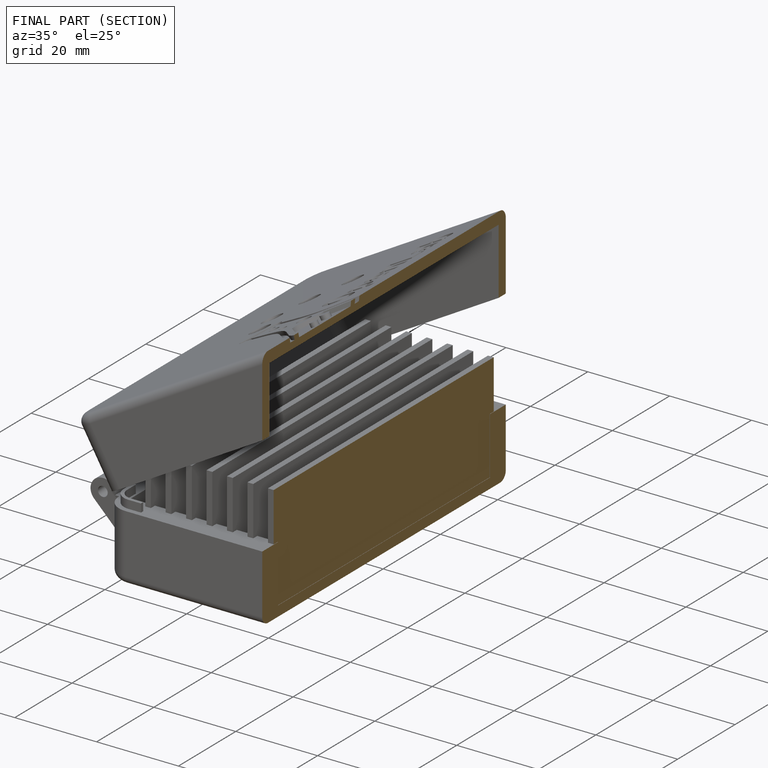
[diagram: finished part — half-section view (interior)]
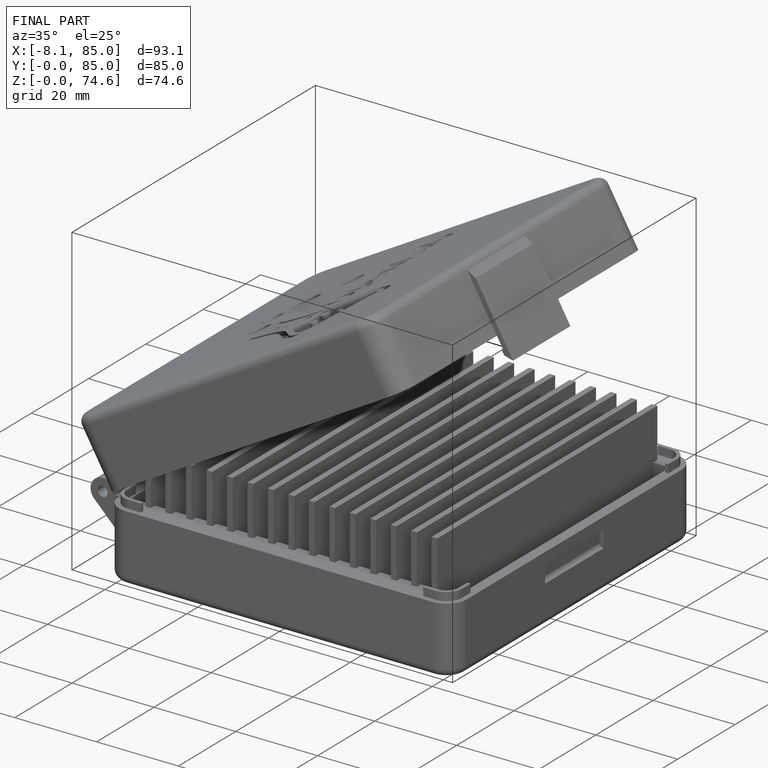
[diagram: finished part — iso view with bounding-box wireframe]
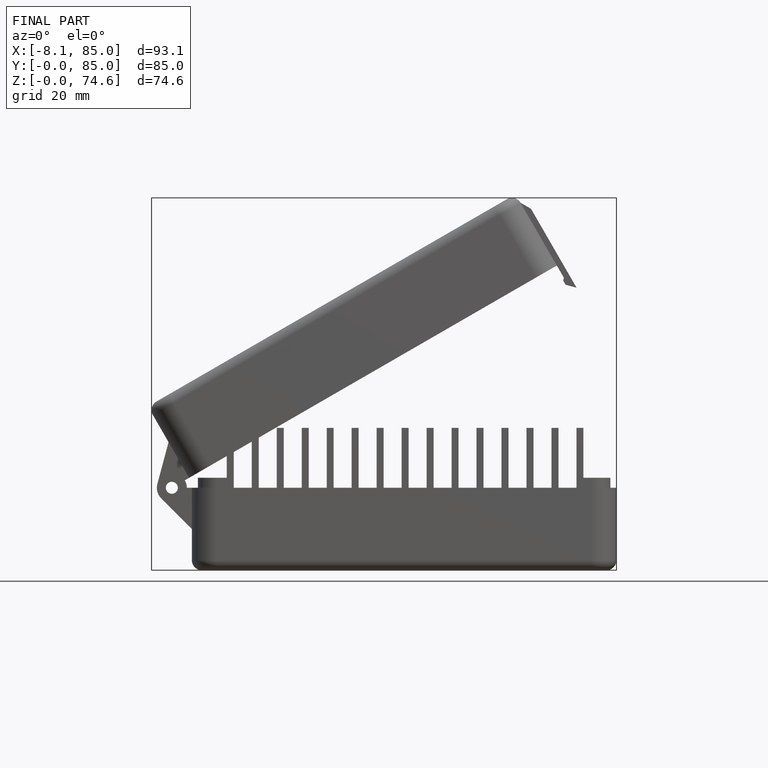
[diagram: finished part — front view with bounding-box wireframe]
